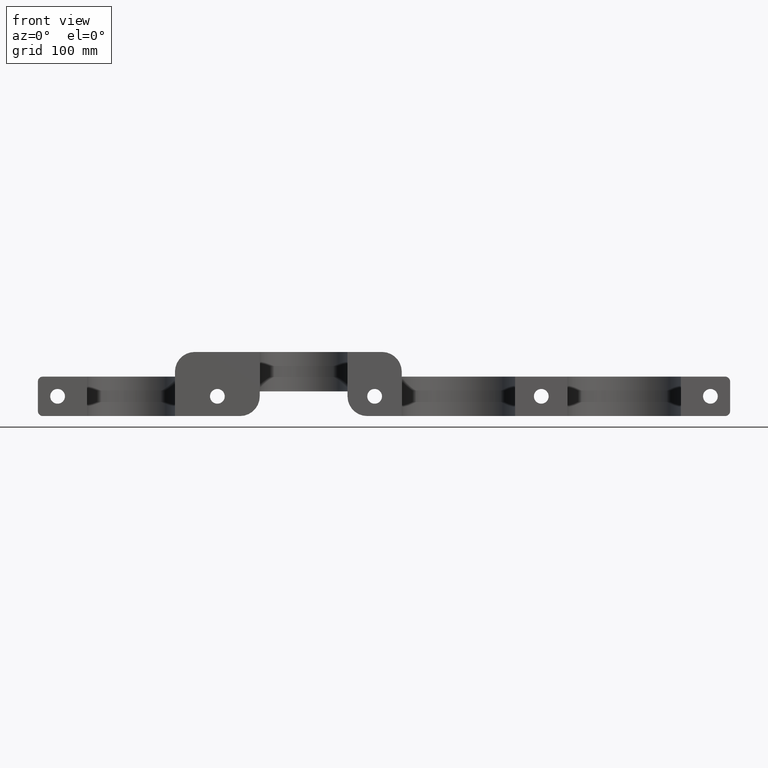
[diagram: clean part render]
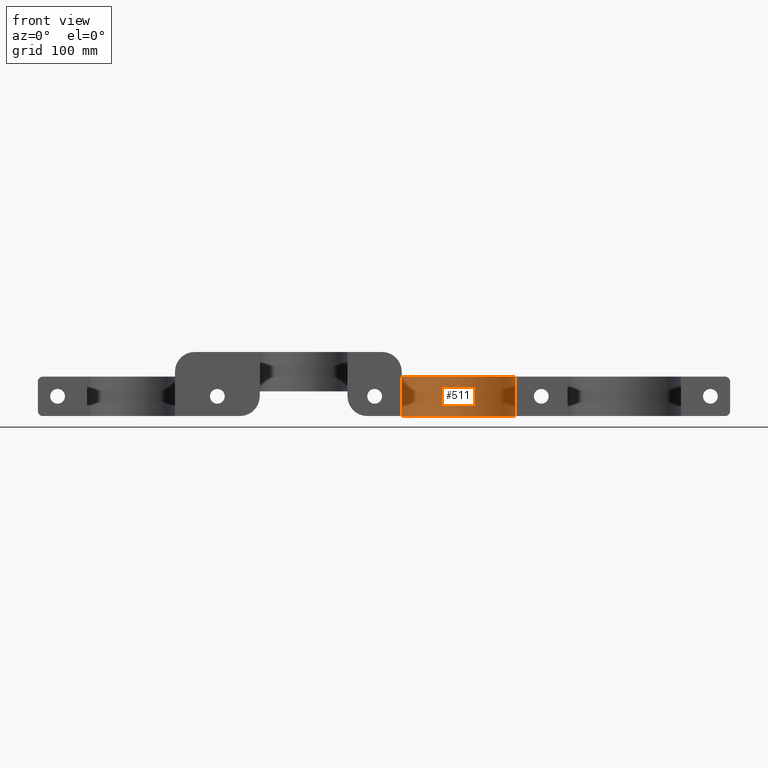
[diagram: same view with one face highlighted and labeled with its STEP entity id]
A machine part, front view. The second image highlights one B-rep face of the part: STEP entity #511.
In plain terms, the highlighted cylindrical surface (partial cylindrical patch) has radius 57.5 mm, axis along (-0, -0, -1).
Its self-contained STEP definition (entity closure, byte-faithful):
#83 = CYLINDRICAL_SURFACE ( 'NONE', #2318, 57.50000000000000711 ) ;
#212 = CARTESIAN_POINT ( 'NONE',  ( 57.50000000000000711, 167.4999999999999716, 20.00000000000000000 ) ) ;
#239 = AXIS2_PLACEMENT_3D ( 'NONE', #1311, #499, #1761 ) ;
#242 = VECTOR ( 'NONE', #2103, 1000.000000000000000 ) ;
#258 = CARTESIAN_POINT ( 'NONE',  ( 57.50000000000000711, 167.4999999999999716, -20.00000000000000000 ) ) ;
#349 = EDGE_CURVE ( 'NONE', #683, #565, #753, .T. ) ;
#499 = DIRECTION ( 'NONE',  ( -0.000000000000000000, -0.000000000000000000, -1.000000000000000000 ) ) ;
#511 = ADVANCED_FACE ( 'NONE', ( #1303 ), #83, .F. ) ;
#565 = VERTEX_POINT ( 'NONE', #1565 ) ;
#654 = CARTESIAN_POINT ( 'NONE',  ( -57.50000000000000711, 167.4999999999999716, 20.00000000000000000 ) ) ;
#683 = VERTEX_POINT ( 'NONE', #654 ) ;
#753 = CIRCLE ( 'NONE', #2612, 57.50000000000000711 ) ;
#779 = DIRECTION ( 'NONE',  ( -0.000000000000000000, -0.000000000000000000, -1.000000000000000000 ) ) ;
#789 = CARTESIAN_POINT ( 'NONE',  ( 0.000000000000000000, 167.4999999999999716, 20.00000000000000000 ) ) ;
#919 = VERTEX_POINT ( 'NONE', #258 ) ;
#994 = CARTESIAN_POINT ( 'NONE',  ( -57.50000000000000711, 167.4999999999999716, -20.00000000000000000 ) ) ;
#1216 = ORIENTED_EDGE ( 'NONE', *, *, #2651, .T. ) ;
#1285 = ORIENTED_EDGE ( 'NONE', *, *, #1959, .T. ) ;
#1303 = FACE_OUTER_BOUND ( 'NONE', #1561, .T. ) ;
#1311 = CARTESIAN_POINT ( 'NONE',  ( 0.000000000000000000, 167.4999999999999716, -20.00000000000000000 ) ) ;
#1429 = DIRECTION ( 'NONE',  ( -0.000000000000000000, -0.000000000000000000, -1.000000000000000000 ) ) ;
#1561 = EDGE_LOOP ( 'NONE', ( #1285, #2513, #2099, #1216 ) ) ;
#1565 = CARTESIAN_POINT ( 'NONE',  ( 57.50000000000000711, 167.4999999999999716, 20.00000000000000000 ) ) ;
#1622 = DIRECTION ( 'NONE',  ( -0.000000000000000000, -0.000000000000000000, -1.000000000000000000 ) ) ;
#1659 = DIRECTION ( 'NONE',  ( -1.000000000000000000, 0.000000000000000000, 0.000000000000000000 ) ) ;
#1761 = DIRECTION ( 'NONE',  ( -1.000000000000000000, 0.000000000000000000, 0.000000000000000000 ) ) ;
#1834 = LINE ( 'NONE', #212, #2500 ) ;
#1959 = EDGE_CURVE ( 'NONE', #2547, #919, #2328, .T. ) ;
#2099 = ORIENTED_EDGE ( 'NONE', *, *, #349, .F. ) ;
#2103 = DIRECTION ( 'NONE',  ( -0.000000000000000000, -0.000000000000000000, -1.000000000000000000 ) ) ;
#2208 = DIRECTION ( 'NONE',  ( -1.000000000000000000, 0.000000000000000000, 0.000000000000000000 ) ) ;
#2216 = CARTESIAN_POINT ( 'NONE',  ( 0.000000000000000000, 167.4999999999999716, 20.00000000000000000 ) ) ;
#2314 = CARTESIAN_POINT ( 'NONE',  ( -57.50000000000000711, 167.4999999999999716, 20.00000000000000000 ) ) ;
#2318 = AXIS2_PLACEMENT_3D ( 'NONE', #2216, #779, #2208 ) ;
#2328 = CIRCLE ( 'NONE', #239, 57.50000000000000711 ) ;
#2500 = VECTOR ( 'NONE', #1622, 1000.000000000000000 ) ;
#2513 = ORIENTED_EDGE ( 'NONE', *, *, #2560, .F. ) ;
#2547 = VERTEX_POINT ( 'NONE', #994 ) ;
#2560 = EDGE_CURVE ( 'NONE', #565, #919, #1834, .T. ) ;
#2605 = LINE ( 'NONE', #2314, #242 ) ;
#2612 = AXIS2_PLACEMENT_3D ( 'NONE', #789, #1429, #1659 ) ;
#2651 = EDGE_CURVE ( 'NONE', #683, #2547, #2605, .T. ) ;